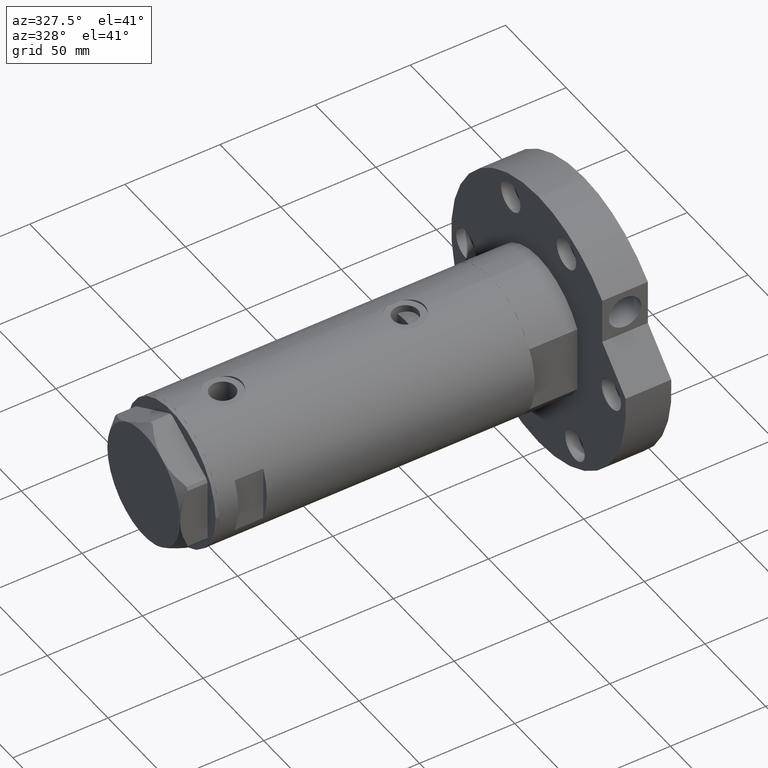
[diagram: clean part render]
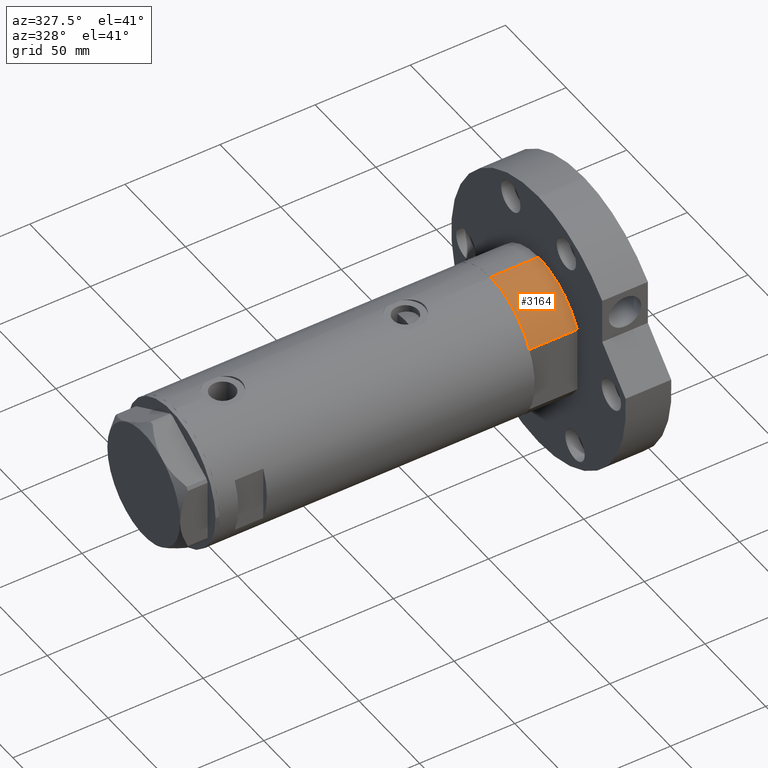
[diagram: same view with one face highlighted and labeled with its STEP entity id]
A machine part, auxiliary view. The second image highlights one B-rep face of the part: STEP entity #3164.
In plain terms, the highlighted cylindrical surface (partial cylindrical patch) has radius 36.5 mm, axis along (-1, -0, 0).
Its self-contained STEP definition (entity closure, byte-faithful):
#183 = LINE ( 'NONE', #5367, #2515 ) ;
#238 = DIRECTION ( 'NONE',  ( -0.000000000000000000, -0.000000000000000000, 1.000000000000000000 ) ) ;
#673 = VERTEX_POINT ( 'NONE', #5302 ) ;
#775 = EDGE_CURVE ( 'NONE', #4622, #1627, #3882, .T. ) ;
#859 = LINE ( 'NONE', #5106, #1537 ) ;
#906 = CARTESIAN_POINT ( 'NONE',  ( 0.000000000000000000, 0.000000000000000000, 25.19999999999999929 ) ) ;
#926 = DIRECTION ( 'NONE',  ( 1.000000000000000000, 0.000000000000000000, 0.000000000000000000 ) ) ;
#1141 = AXIS2_PLACEMENT_3D ( 'NONE', #1671, #1214, #3915 ) ;
#1214 = DIRECTION ( 'NONE',  ( -0.000000000000000000, -0.000000000000000000, -1.000000000000000000 ) ) ;
#1304 = CARTESIAN_POINT ( 'NONE',  ( -17.55704986607943496, -32.00000000000000000, 0.000000000000000000 ) ) ;
#1387 = CARTESIAN_POINT ( 'NONE',  ( 0.000000000000000000, 0.000000000000000000, 0.000000000000000000 ) ) ;
#1437 = VERTEX_POINT ( 'NONE', #3011 ) ;
#1461 = DIRECTION ( 'NONE',  ( 0.000000000000000000, 0.000000000000000000, 1.000000000000000000 ) ) ;
#1537 = VECTOR ( 'NONE', #3412, 1000.000000000000000 ) ;
#1627 = VERTEX_POINT ( 'NONE', #1304 ) ;
#1671 = CARTESIAN_POINT ( 'NONE',  ( 0.000000000000000000, 0.000000000000000000, 25.19999999999999929 ) ) ;
#2047 = EDGE_LOOP ( 'NONE', ( #4635, #5267, #2167, #3346 ) ) ;
#2167 = ORIENTED_EDGE ( 'NONE', *, *, #775, .T. ) ;
#2515 = VECTOR ( 'NONE', #238, 1000.000000000000000 ) ;
#3011 = CARTESIAN_POINT ( 'NONE',  ( -17.55704986607943496, -32.00000000000000000, 25.19999999999999929 ) ) ;
#3164 = ADVANCED_FACE ( 'NONE', ( #4038 ), #4887, .T. ) ;
#3213 = EDGE_CURVE ( 'NONE', #1627, #1437, #183, .T. ) ;
#3346 = ORIENTED_EDGE ( 'NONE', *, *, #3213, .T. ) ;
#3412 = DIRECTION ( 'NONE',  ( -0.000000000000000000, -0.000000000000000000, -1.000000000000000000 ) ) ;
#3642 = CARTESIAN_POINT ( 'NONE',  ( -36.50000000000000000, 0.000000000000000000, 0.000000000000000000 ) ) ;
#3727 = DIRECTION ( 'NONE',  ( 0.000000000000000000, 0.000000000000000000, 1.000000000000000000 ) ) ;
#3882 = CIRCLE ( 'NONE', #5554, 36.50000000000000000 ) ;
#3915 = DIRECTION ( 'NONE',  ( -1.000000000000000000, 0.000000000000000000, 0.000000000000000000 ) ) ;
#4038 = FACE_OUTER_BOUND ( 'NONE', #2047, .T. ) ;
#4622 = VERTEX_POINT ( 'NONE', #3642 ) ;
#4635 = ORIENTED_EDGE ( 'NONE', *, *, #5098, .F. ) ;
#4731 = DIRECTION ( 'NONE',  ( 1.000000000000000000, 0.000000000000000000, 0.000000000000000000 ) ) ;
#4771 = EDGE_CURVE ( 'NONE', #673, #4622, #859, .T. ) ;
#4887 = CYLINDRICAL_SURFACE ( 'NONE', #1141, 36.50000000000000000 ) ;
#5098 = EDGE_CURVE ( 'NONE', #673, #1437, #5407, .T. ) ;
#5106 = CARTESIAN_POINT ( 'NONE',  ( -36.50000000000000000, 0.000000000000000000, 25.19999999999999929 ) ) ;
#5267 = ORIENTED_EDGE ( 'NONE', *, *, #4771, .T. ) ;
#5302 = CARTESIAN_POINT ( 'NONE',  ( -36.50000000000000000, 0.000000000000000000, 25.19999999999999929 ) ) ;
#5367 = CARTESIAN_POINT ( 'NONE',  ( -17.55704986607943141, -32.00000000000000000, 0.000000000000000000 ) ) ;
#5407 = CIRCLE ( 'NONE', #5900, 36.50000000000000000 ) ;
#5554 = AXIS2_PLACEMENT_3D ( 'NONE', #1387, #3727, #926 ) ;
#5900 = AXIS2_PLACEMENT_3D ( 'NONE', #906, #1461, #4731 ) ;